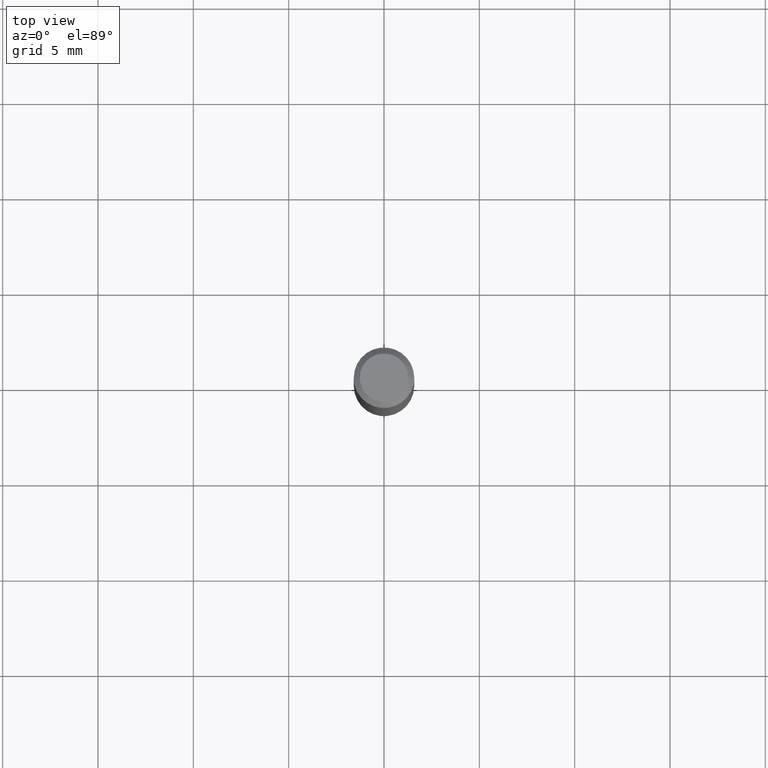
[diagram: clean part render]
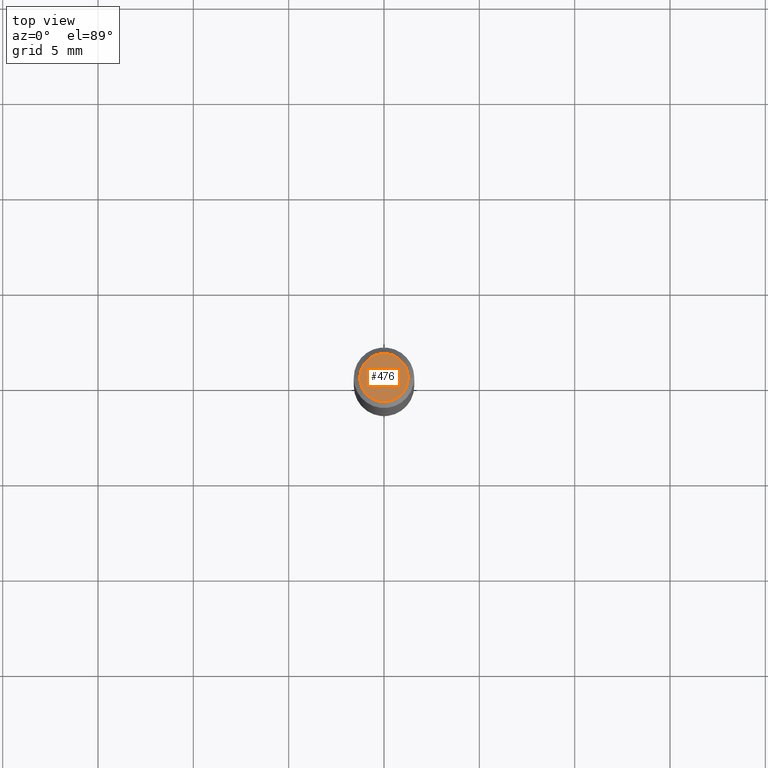
[diagram: same view with one face highlighted and labeled with its STEP entity id]
A machine part, top view. The second image highlights one B-rep face of the part: STEP entity #476.
In plain terms, the highlighted planar face has unit normal (0, -0, -1).
Its self-contained STEP definition (entity closure, byte-faithful):
#9 = VERTEX_POINT ( 'NONE', #385 ) ;
#37 = CARTESIAN_POINT ( 'NONE',  ( -0.04999999999999999584, 3.709698922520826725E-16, -1.592040838894077649E-18 ) ) ;
#63 = AXIS2_PLACEMENT_3D ( 'NONE', #98, #395, #435 ) ;
#78 = CARTESIAN_POINT ( 'NONE',  ( 3.893286209682126177E-47, -5.558580879666067980E-33, -1.592040838891559689E-18 ) ) ;
#98 = CARTESIAN_POINT ( 'NONE',  ( 3.893286209682126177E-47, -5.558580879666067980E-33, -1.592040838891559689E-18 ) ) ;
#119 = ORIENTED_EDGE ( 'NONE', *, *, #125, .T. ) ;
#120 = CARTESIAN_POINT ( 'NONE',  ( 1.946643104841063088E-47, -2.779290439833033990E-33, -7.960204194457798443E-19 ) ) ;
#125 = EDGE_CURVE ( 'NONE', #379, #9, #473, .T. ) ;
#130 = FACE_OUTER_BOUND ( 'NONE', #186, .T. ) ;
#173 = DIRECTION ( 'NONE',  ( 2.438088387897960049E-29, -3.491481338843145188E-15, -1.000000000000000000 ) ) ;
#186 = EDGE_LOOP ( 'NONE', ( #119, #231 ) ) ;
#231 = ORIENTED_EDGE ( 'NONE', *, *, #365, .T. ) ;
#259 = AXIS2_PLACEMENT_3D ( 'NONE', #120, #173, #317 ) ;
#291 = DIRECTION ( 'NONE',  ( 1.000000000000000000, -6.982962677686265922E-15, 4.875957971899673662E-29 ) ) ;
#298 = DIRECTION ( 'NONE',  ( -2.445468806185136597E-29, 3.491481338843145583E-15, 1.000000000000000000 ) ) ;
#305 = CIRCLE ( 'NONE', #474, 0.04999999999999999584 ) ;
#317 = DIRECTION ( 'NONE',  ( -1.000000000000000000, 6.982962677686265922E-15, -4.876176775795935793E-29 ) ) ;
#365 = EDGE_CURVE ( 'NONE', #9, #379, #305, .T. ) ;
#375 = PLANE ( 'NONE',  #259 ) ;
#379 = VERTEX_POINT ( 'NONE', #37 ) ;
#385 = CARTESIAN_POINT ( 'NONE',  ( 0.04999999999999999584, -4.077247707424184705E-16, -1.592040838888913461E-18 ) ) ;
#395 = DIRECTION ( 'NONE',  ( -2.445468806185136597E-29, 3.491481338843145583E-15, 1.000000000000000000 ) ) ;
#435 = DIRECTION ( 'NONE',  ( 1.000000000000000000, -6.982962677686265922E-15, 4.875957971899673662E-29 ) ) ;
#473 = CIRCLE ( 'NONE', #63, 0.04999999999999999584 ) ;
#474 = AXIS2_PLACEMENT_3D ( 'NONE', #78, #298, #291 ) ;
#476 = ADVANCED_FACE ( 'NONE', ( #130 ), #375, .F. ) ;